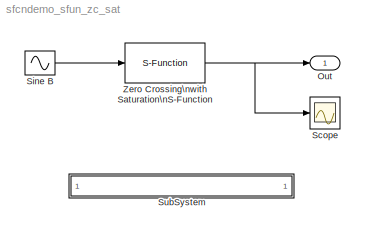
MODEL sfcndemo_sfun_zc_sat
KIND model
BLOCK [Outport] Out
  IconDisplay = Port number
  InitialOutput = 0
BLOCK [Scope] Scope
  DataFormat = StructureWithTime
  NumInputPorts = 1
  Ports = [1]
  SampleInput = on
  SampleTime = -1
  TimeRange = 10
  YMax = 1
  YMin = -0.5
BLOCK [Sin] Sine B
  Ports = [0, 1]
BLOCK [SubSystem] SubSystem
  MaskDisplay = disp('matlabroot<path>');
  MaskIconFrame = on
  MaskIconOpaque = on
  MaskIconRotate = none
  MaskIconUnits = autoscale
  MinAlgLoopOccurrences = off
  OpenFcn = edit(fullfile(matlabroot,'simulink','src','sfun_zc_sat.c'))
  Ports = []
  PropExecContextAcrossSSBoundary = on
  RTWSystemCode = Auto
  TreatAsAtomicUnit = off
BLOCK [S-Function] Zero Crossing\nwith Saturation\nS-Function
  FunctionName = sfun_zc_sat
  MaskCallbackString = |
  MaskDescription = This is a S-function block which has nonsampled zero crossings to implement a saturation function.
  MaskEnableString = on,on
  MaskIconFrame = on
  MaskIconOpaque = on
  MaskIconRotate = none
  MaskIconUnits = autoscale
  MaskPromptString = Upper Limit|Lower Limit
  MaskStyleString = edit,edit
  MaskTabNameString = ,
  MaskToolTipString = on,on
  MaskTunableValueString = on,on
  MaskType = S-function: sfun_zc_sat
  MaskValueString = [0.5 0.75]|[0,-.5]
  MaskVarAliasString = ,
  MaskVariables = ub=@1;lb=@2;
  MaskVisibilityString = on,on
  Parameters = ub, lb
  Ports = [1, 1]
LINE Sine B:1 -> Zero Crossing\nwith Saturation\nS-Function:1
NET Zero Crossing\nwith Saturation\nS-Function:1 -> Out:1, Scope:1
note: NET lines group one-source signal fan-out (src -> all destinations, sorted); 1:1 wires keep LINE
note: 1 file-system path scrubbed to <path> (not preserved elsewhere — flat text is the only slx artifact)
